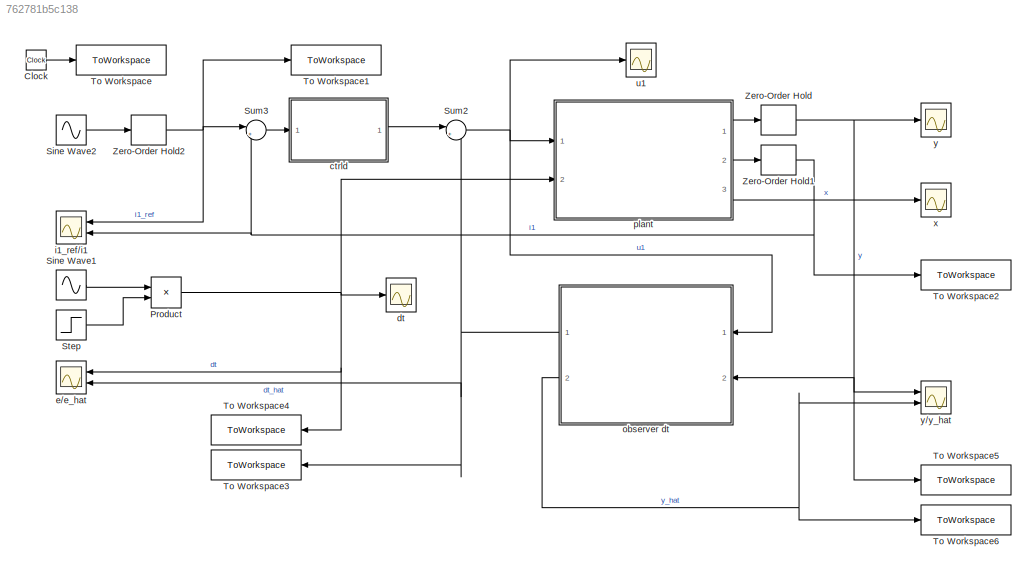
MODEL slx_762781b5c138
KIND model
CONFIG AbsTol = auto
CONFIG EnableMultiTasking = off
CONFIG FixedStep = auto
CONFIG MaxStep = auto
CONFIG MinStep = auto
CONFIG RelTol = 1e-3
CONFIG SampleTimeConstraint = Unconstrained
CONFIG Solver = VariableStepAuto
CONFIG SolverName = VariableStepAuto
CONFIG StartTime = 0.0
CONFIG StopTime = simlength
BLOCK [Clock] Clock
BLOCK [Product] Product
  Ports = [2, 1]
BLOCK [Sin] Sine Wave1
  Amplitude = d
  Frequency = w
  Ports = [0, 1]
  SampleTime = 0
BLOCK [Sin] Sine Wave2
  Amplitude = 20
  Frequency = w0
  Ports = [0, 1]
  SampleTime = 0
BLOCK [Step] Step
  SampleTime = 0
  Time = simlength/2
BLOCK [Sum] Sum2
  Inputs = |++
  Ports = [2, 1]
BLOCK [Sum] Sum3
  Inputs = |+-
  Ports = [2, 1]
BLOCK [ToWorkspace] To Workspace
  FixptAsFi = on
  MaxDataPoints = Nc
  Ports = [1]
  SampleTime = Tc
  VariableName = t
BLOCK [ToWorkspace] To Workspace1
  FixptAsFi = on
  MaxDataPoints = Nc
  Ports = [1]
  SampleTime = Tc
  VariableName = i1_ref
BLOCK [ToWorkspace] To Workspace2
  FixptAsFi = on
  MaxDataPoints = Nc
  Ports = [1]
  SampleTime = Tc
  VariableName = i1
BLOCK [ToWorkspace] To Workspace3
  FixptAsFi = on
  MaxDataPoints = Nc
  NameLocation = top
  Ports = [1]
  SampleTime = Tc
  VariableName = dt_hat
BLOCK [ToWorkspace] To Workspace4
  FixptAsFi = on
  MaxDataPoints = Nc
  NameLocation = top
  Ports = [1]
  SampleTime = Tc
  VariableName = dt
BLOCK [ToWorkspace] To Workspace5
  FixptAsFi = on
  MaxDataPoints = Nc
  Ports = [1]
  SampleTime = Tc
  VariableName = y
BLOCK [ToWorkspace] To Workspace6
  FixptAsFi = on
  MaxDataPoints = Nc
  Ports = [1]
  SampleTime = Tc
  VariableName = y_hat
BLOCK [ZeroOrderHold] Zero-Order Hold
  SampleTime = Ts
BLOCK [ZeroOrderHold] Zero-Order Hold1
  SampleTime = Ts
BLOCK [ZeroOrderHold] Zero-Order Hold2
  SampleTime = Ts
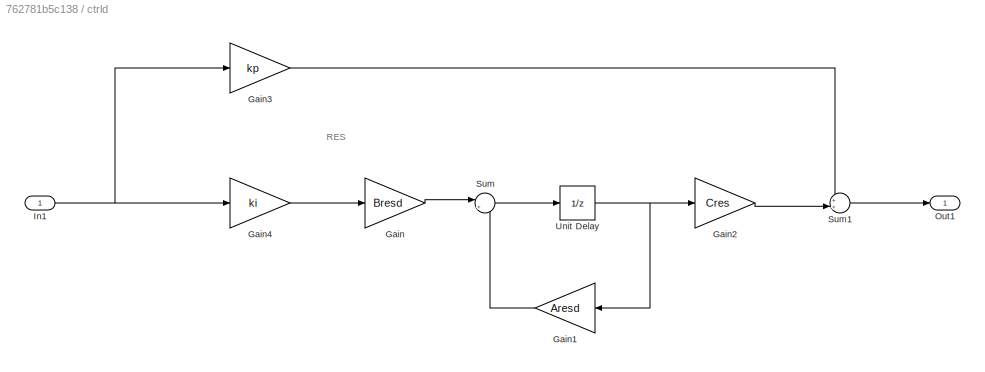
BLOCK [SubSystem] ctrld
  Ports = [1, 1]
  RequestExecContextInheritance = off
BLOCK [Gain] ctrld/Gain
  Gain = Bresd
  Multiplication = Matrix(K*u)
BLOCK [Gain] ctrld/Gain1
  Gain = Aresd
  Multiplication = Matrix(K*u)
  NameLocation = top
BLOCK [Gain] ctrld/Gain2
  Gain = Cres
  Multiplication = Matrix(K*u)
BLOCK [Gain] ctrld/Gain3
  Gain = kp
BLOCK [Gain] ctrld/Gain4
  Gain = ki
BLOCK [Inport] ctrld/In1
BLOCK [Outport] ctrld/Out1
BLOCK [Sum] ctrld/Sum
  Inputs = |++
  Ports = [2, 1]
BLOCK [Sum] ctrld/Sum1
  Inputs = ++|
  Ports = [2, 1]
BLOCK [UnitDelay] ctrld/Unit Delay
  HasFrameUpgradeWarning = on
  SampleTime = Ts
BLOCK [Scope] dt
  Floating = off
  NumInputPorts = 1
  Ports = [1]
  ScopeSpecificationString = Simulink.scopes.TimeScopeBlockCfg('CurrentConfiguration', extmgr.ConfigurationSet(extmgr.Configuration('Core','General UI',true),extmgr.Configuration('Core','Source UI',true),extmgr.Configuration('Sources','WiredSimulink',true,'DataLoggingVariableName','ScopeData1'),extmgr.Configuration('Visuals','Time Domain',true,'SerializedDisplays',{struct('MinYLimReal','-0.3125','MaxYLimReal','0.3125','YLabel...<+1426ch>
BLOCK [Scope] e//e_hat
  Floating = off
  NumInputPorts = 2
  Ports = [2]
  ScopeSpecificationString = Simulink.scopes.TimeScopeBlockCfg('CurrentConfiguration', extmgr.ConfigurationSet(extmgr.Configuration('Core','General UI',true),extmgr.Configuration('Core','Source UI',true),extmgr.Configuration('Sources','WiredSimulink',true,'DataLoggingVariableName','ScopeData4','SampleTime','Tc'),extmgr.Configuration('Visuals','Time Domain',true,'SerializedDisplays',{struct('MinYLimReal','-7.98808','MaxYLimRea...<+1459ch>
BLOCK [Scope] i1_ref//i1
  Floating = off
  NameLocation = top
  NumInputPorts = 2
  Ports = [2]
  ScopeSpecificationString = Simulink.scopes.TimeScopeBlockCfg('CurrentConfiguration', extmgr.ConfigurationSet(extmgr.Configuration('Core','General UI',true),extmgr.Configuration('Core','Source UI',true),extmgr.Configuration('Sources','WiredSimulink',true,'SampleTime','Tc'),extmgr.Configuration('Visuals','Time Domain',true,'SerializedDisplays',{struct('MinYLimReal','-24.24017','MaxYLimReal','21.58116','YLabelReal','','MinYLim...<+1662ch>
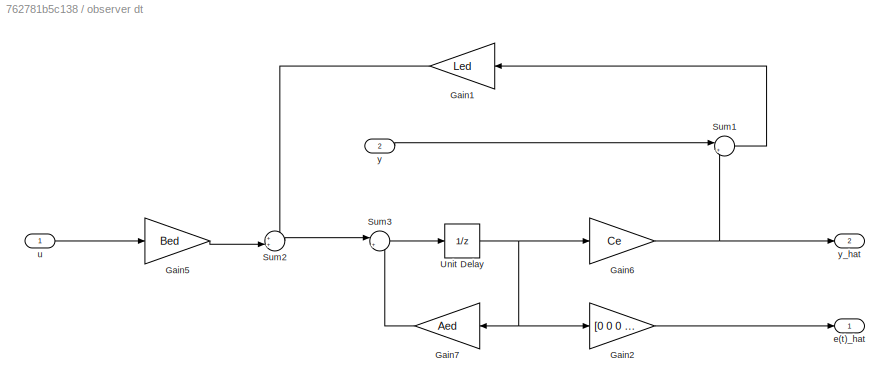
BLOCK [SubSystem] observer dt
  NameLocation = top
  Ports = [2, 2]
  RequestExecContextInheritance = off
BLOCK [Gain] observer dt/Gain1
  Gain = Led
  Multiplication = Matrix(K*u)
  NameLocation = top
BLOCK [Gain] observer dt/Gain2
  Gain = [0 0 0 1 0]
  Multiplication = Matrix(K*u)
BLOCK [Gain] observer dt/Gain5
  Gain = Bed
  Multiplication = Matrix(K*u)
BLOCK [Gain] observer dt/Gain6
  Gain = Ce
  Multiplication = Matrix(K*u)
BLOCK [Gain] observer dt/Gain7
  Gain = Aed
  Multiplication = Matrix(K*u)
BLOCK [Sum] observer dt/Sum1
  Inputs = |+-
  Ports = [2, 1]
BLOCK [Sum] observer dt/Sum2
  Inputs = ++|
  Ports = [2, 1]
BLOCK [Sum] observer dt/Sum3
  Inputs = |++
  Ports = [2, 1]
BLOCK [UnitDelay] observer dt/Unit Delay
  HasFrameUpgradeWarning = on
  SampleTime = Ts
BLOCK [Outport] observer dt/e(t)_hat
BLOCK [Inport] observer dt/u
BLOCK [Inport] observer dt/y
  Port = 2
BLOCK [Outport] observer dt/y_hat
  Port = 2
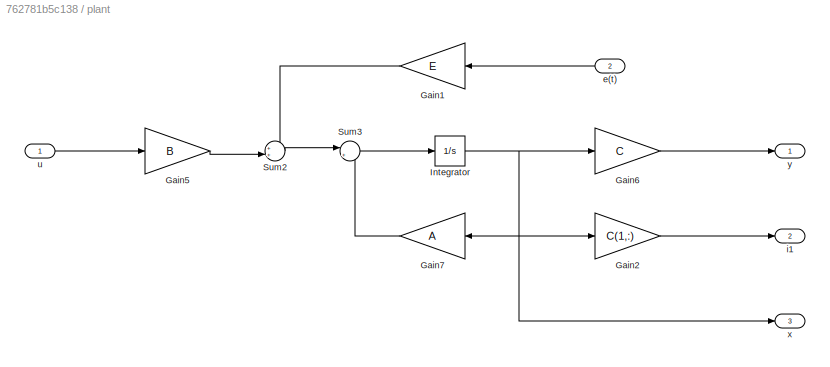
BLOCK [SubSystem] plant 
  Ports = [2, 3]
  RequestExecContextInheritance = off
BLOCK [Gain] plant /Gain1
  Gain = E
  Multiplication = Matrix(K*u)
  NameLocation = top
BLOCK [Gain] plant /Gain2
  Gain = C(1,:)
  Multiplication = Matrix(K*u)
BLOCK [Gain] plant /Gain5
  Gain = B
  Multiplication = Matrix(K*u)
BLOCK [Gain] plant /Gain6
  Gain = C
  Multiplication = Matrix(K*u)
BLOCK [Gain] plant /Gain7
  Gain = A
  Multiplication = Matrix(K*u)
BLOCK [Integrator] plant /Integrator
  Ports = [1, 1]
BLOCK [Sum] plant /Sum2
  Inputs = ++|
  Ports = [2, 1]
BLOCK [Sum] plant /Sum3
  Inputs = |++
  Ports = [2, 1]
BLOCK [Inport] plant /e(t)
  Port = 2
BLOCK [Outport] plant /i1
  Port = 2
BLOCK [Inport] plant /u
BLOCK [Outport] plant /x
  Port = 3
BLOCK [Outport] plant /y
BLOCK [Scope] u1
  Floating = off
  NumInputPorts = 1
  Ports = [1]
  ScopeSpecificationString = Simulink.scopes.TimeScopeBlockCfg('CurrentConfiguration', extmgr.ConfigurationSet(extmgr.Configuration('Core','General UI',true),extmgr.Configuration('Core','Source UI',true),extmgr.Configuration('Sources','WiredSimulink',true,'DataLoggingVariableName','ScopeData1'),extmgr.Configuration('Visuals','Time Domain',true,'SerializedDisplays',{struct('MinYLimReal','-9.82123','MaxYLimReal','9.19013','YLab...<+1435ch>
BLOCK [Scope] x
  Floating = off
  NumInputPorts = 1
  Ports = [1]
  ScopeSpecificationString = Simulink.scopes.TimeScopeBlockCfg('CurrentConfiguration', extmgr.ConfigurationSet(extmgr.Configuration('Core','General UI',true),extmgr.Configuration('Core','Source UI',true),extmgr.Configuration('Sources','WiredSimulink',true,'DataLoggingVariableName','ScopeData1'),extmgr.Configuration('Visuals','Time Domain',true,'SerializedDisplays',{struct('MinYLimReal','-1.09917','MaxYLimReal','1.45866','YLab...<+1446ch>
BLOCK [Scope] y
  Floating = off
  NumInputPorts = 1
  Ports = [1]
  ScopeSpecificationString = Simulink.scopes.TimeScopeBlockCfg('CurrentConfiguration', extmgr.ConfigurationSet(extmgr.Configuration('Core','General UI',true),extmgr.Configuration('Core','Source UI',true),extmgr.Configuration('Sources','WiredSimulink',true,'DataLoggingVariableName','ScopeData2','SampleTime','Tc'),extmgr.Configuration('Visuals','Time Domain',true,'SerializedDisplays',{struct('MinYLimReal','-1.22512','MaxYLimRea...<+1449ch>
BLOCK [Scope] y//y_hat
  Floating = off
  NumInputPorts = 2
  Ports = [2]
  ScopeSpecificationString = Simulink.scopes.TimeScopeBlockCfg('CurrentConfiguration', extmgr.ConfigurationSet(extmgr.Configuration('Core','General UI',true),extmgr.Configuration('Core','Source UI',true),extmgr.Configuration('Sources','WiredSimulink',true,'DataLoggingVariableName','ScopeData3','SampleTime','Tc'),extmgr.Configuration('Visuals','Time Domain',true,'SerializedDisplays',{struct('MinYLimReal','-1.81263','MaxYLimRea...<+1463ch>
ANNOTATION ctrld: RES
LINE Clock:1 -> To Workspace:1
NET Product:1 -> To Workspace4:1, dt:1, e//e_hat:1, plant :2
LINE Sine Wave1:1 -> Product:1
LINE Sine Wave2:1 -> Zero-Order Hold2:1
LINE Step:1 -> Product:2
NET Sum2:1 -> observer dt:1, plant :1, u1:1
LINE Sum3:1 -> ctrld:1
NET Zero-Order Hold1:1 -> Sum3:2, To Workspace2:1, i1_ref//i1:2
NET Zero-Order Hold2:1 -> Sum3:1, To Workspace1:1, i1_ref//i1:1
NET Zero-Order Hold:1 -> To Workspace5:1, observer dt:2, y//y_hat:1, y:1
LINE ctrld/Gain1:1 -> ctrld/Sum:2
LINE ctrld/Gain2:1 -> ctrld/Sum1:2
LINE ctrld/Gain3:1 -> ctrld/Sum1:1
LINE ctrld/Gain4:1 -> ctrld/Gain:1
LINE ctrld/Gain:1 -> ctrld/Sum:1
NET ctrld/In1:1 -> ctrld/Gain3:1, ctrld/Gain4:1
LINE ctrld/Sum1:1 -> ctrld/Out1:1
LINE ctrld/Sum:1 -> ctrld/Unit Delay:1
NET ctrld/Unit Delay:1 -> ctrld/Gain1:1, ctrld/Gain2:1
LINE ctrld:1 -> Sum2:1
LINE observer dt/Gain1:1 -> observer dt/Sum2:1
LINE observer dt/Gain2:1 -> observer dt/e(t)_hat:1
LINE observer dt/Gain5:1 -> observer dt/Sum2:2
NET observer dt/Gain6:1 -> observer dt/Sum1:2, observer dt/y_hat:1
LINE observer dt/Gain7:1 -> observer dt/Sum3:2
LINE observer dt/Sum1:1 -> observer dt/Gain1:1
LINE observer dt/Sum2:1 -> observer dt/Sum3:1
LINE observer dt/Sum3:1 -> observer dt/Unit Delay:1
NET observer dt/Unit Delay:1 -> observer dt/Gain2:1, observer dt/Gain6:1, observer dt/Gain7:1
LINE observer dt/u:1 -> observer dt/Gain5:1
LINE observer dt/y:1 -> observer dt/Sum1:1
NET observer dt:1 -> Sum2:2, To Workspace3:1, e//e_hat:2
NET observer dt:2 -> To Workspace6:1, y//y_hat:2
LINE plant /Gain1:1 -> plant /Sum2:1
LINE plant /Gain2:1 -> plant /i1:1
LINE plant /Gain5:1 -> plant /Sum2:2
LINE plant /Gain6:1 -> plant /y:1
LINE plant /Gain7:1 -> plant /Sum3:2
NET plant /Integrator:1 -> plant /Gain2:1, plant /Gain6:1, plant /Gain7:1, plant /x:1
LINE plant /Sum2:1 -> plant /Sum3:1
LINE plant /Sum3:1 -> plant /Integrator:1
LINE plant /e(t):1 -> plant /Gain1:1
LINE plant /u:1 -> plant /Gain5:1
LINE plant :1 -> Zero-Order Hold:1
LINE plant :2 -> Zero-Order Hold1:1
LINE plant :3 -> x:1
note: NET lines group one-source signal fan-out (src -> all destinations, sorted); 1:1 wires keep LINE
